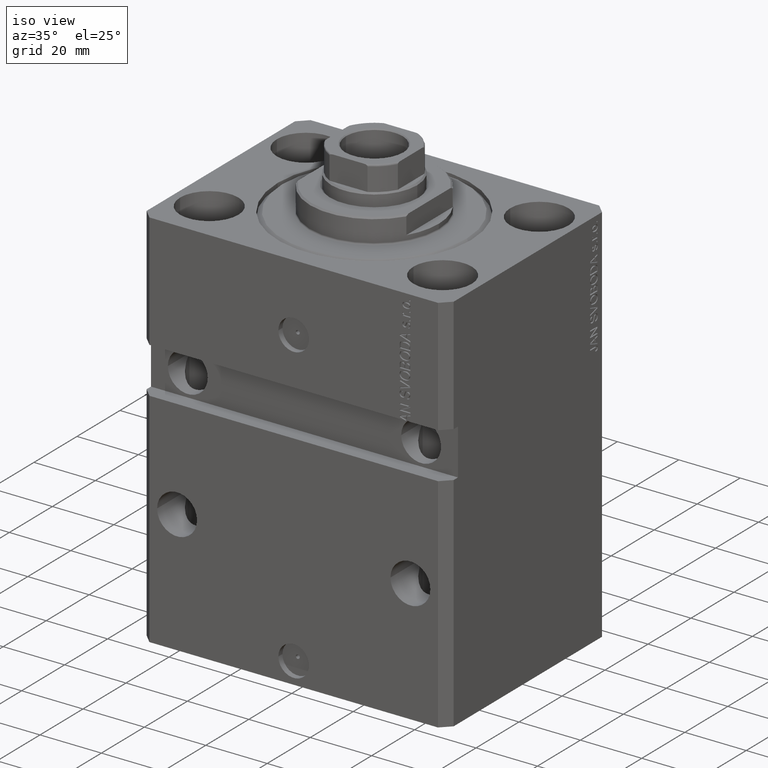
[diagram: clean part render]
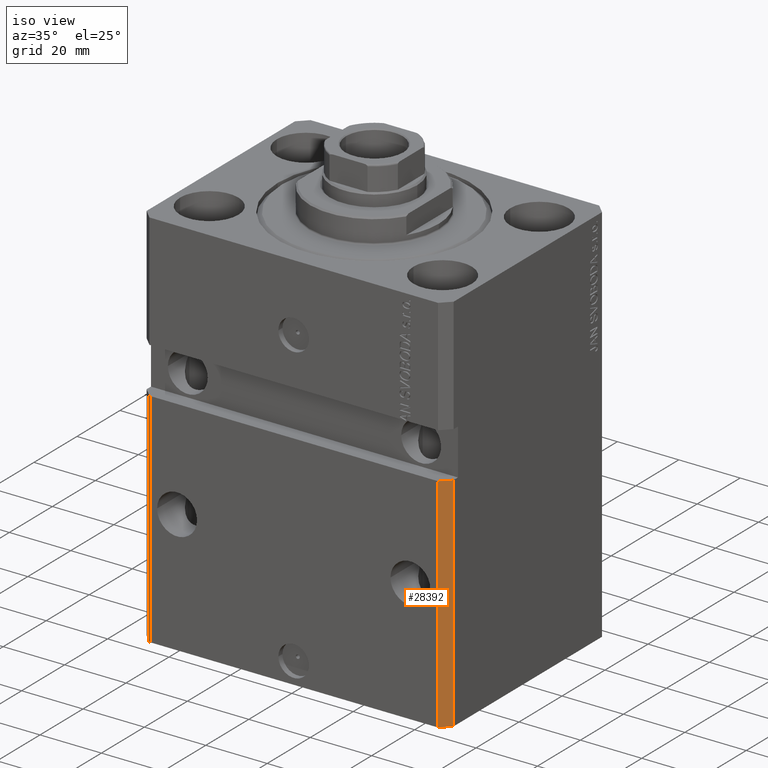
[diagram: same view with one face highlighted and labeled with its STEP entity id]
A machine part, iso view. The second image highlights one B-rep face of the part: STEP entity #28392.
In plain terms, the highlighted planar face has unit normal (0.7071, -0.7071, 0).
Its self-contained STEP definition (entity closure, byte-faithful):
#469 = VERTEX_POINT ( 'NONE', #39208 ) ;
#795 = VECTOR ( 'NONE', #41563, 1000.000000000000000 ) ;
#4039 = CARTESIAN_POINT ( 'NONE',  ( 47.00000000000000000, -37.50000000000000711, -125.0000000000000000 ) ) ;
#4204 = CARTESIAN_POINT ( 'NONE',  ( 47.00000000000000000, -37.50000000000000711, -125.0000000000000000 ) ) ;
#4276 = DIRECTION ( 'NONE',  ( 0.7071067811865466846, -0.7071067811865483499, 0.000000000000000000 ) ) ;
#4524 = DIRECTION ( 'NONE',  ( 0.7071067811865483499, 0.7071067811865466846, 0.000000000000000000 ) ) ;
#5187 = CARTESIAN_POINT ( 'NONE',  ( 50.00000000000000000, -34.50000000000000711, -125.0000000000000000 ) ) ;
#6912 = VECTOR ( 'NONE', #19774, 1000.000000000000000 ) ;
#7364 = LINE ( 'NONE', #22231, #6912 ) ;
#8512 = VECTOR ( 'NONE', #35399, 1000.000000000000000 ) ;
#10969 = EDGE_CURVE ( 'NONE', #35086, #37846, #46090, .T. ) ;
#13778 = ORIENTED_EDGE ( 'NONE', *, *, #18330, .F. ) ;
#13819 = VECTOR ( 'NONE', #42195, 1000.000000000000000 ) ;
#15157 = EDGE_CURVE ( 'NONE', #469, #26119, #7364, .T. ) ;
#16612 = AXIS2_PLACEMENT_3D ( 'NONE', #18427, #4276, #4524 ) ;
#18228 = CARTESIAN_POINT ( 'NONE',  ( 50.00000000000000000, -34.50000000000000711, -125.0000000000000000 ) ) ;
#18330 = EDGE_CURVE ( 'NONE', #35086, #469, #23052, .T. ) ;
#18427 = CARTESIAN_POINT ( 'NONE',  ( 47.00000000000000000, -37.50000000000000711, -125.0000000000000000 ) ) ;
#18913 = ORIENTED_EDGE ( 'NONE', *, *, #19532, .T. ) ;
#19532 = EDGE_CURVE ( 'NONE', #37846, #26119, #24704, .T. ) ;
#19774 = DIRECTION ( 'NONE',  ( 0.7071067811865483499, 0.7071067811865466846, 9.813077866773606810E-17 ) ) ;
#22197 = EDGE_LOOP ( 'NONE', ( #30008, #13778, #33588, #18913 ) ) ;
#22231 = CARTESIAN_POINT ( 'NONE',  ( 46.99999999999999289, -37.50000000000001421, -52.49999999999997868 ) ) ;
#23052 = LINE ( 'NONE', #4039, #795 ) ;
#24704 = LINE ( 'NONE', #5187, #8512 ) ;
#26119 = VERTEX_POINT ( 'NONE', #47820 ) ;
#28392 = ADVANCED_FACE ( 'NONE', ( #41798 ), #34243, .T. ) ;
#30008 = ORIENTED_EDGE ( 'NONE', *, *, #15157, .F. ) ;
#33588 = ORIENTED_EDGE ( 'NONE', *, *, #10969, .T. ) ;
#34243 = PLANE ( 'NONE',  #16612 ) ;
#35086 = VERTEX_POINT ( 'NONE', #41565 ) ;
#35399 = DIRECTION ( 'NONE',  ( 0.000000000000000000, 0.000000000000000000, 1.000000000000000000 ) ) ;
#37846 = VERTEX_POINT ( 'NONE', #18228 ) ;
#39208 = CARTESIAN_POINT ( 'NONE',  ( 47.00000000000000000, -37.49999999999999289, -52.49999999999998579 ) ) ;
#41563 = DIRECTION ( 'NONE',  ( 0.000000000000000000, 0.000000000000000000, 1.000000000000000000 ) ) ;
#41565 = CARTESIAN_POINT ( 'NONE',  ( 47.00000000000000000, -37.50000000000000711, -125.0000000000000000 ) ) ;
#41798 = FACE_OUTER_BOUND ( 'NONE', #22197, .T. ) ;
#42195 = DIRECTION ( 'NONE',  ( 0.7071067811865483499, 0.7071067811865466846, 0.000000000000000000 ) ) ;
#46090 = LINE ( 'NONE', #4204, #13819 ) ;
#47820 = CARTESIAN_POINT ( 'NONE',  ( 49.99999999999999289, -34.50000000000001421, -52.49999999999998579 ) ) ;